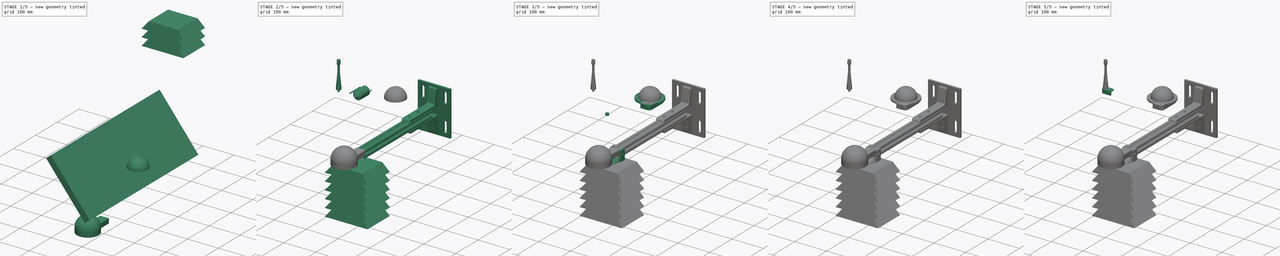
[diagram: build sequence overview — one tinted view per stage of 5, left to right]
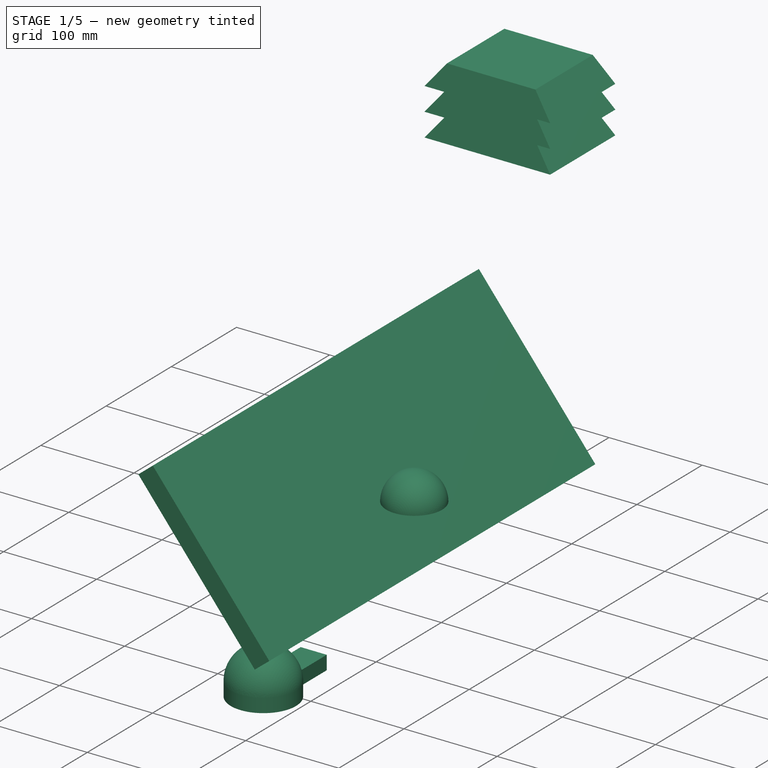
[diagram: stage 1 of 5 — iso view after this stage's code; geometry added in this stage tinted green]
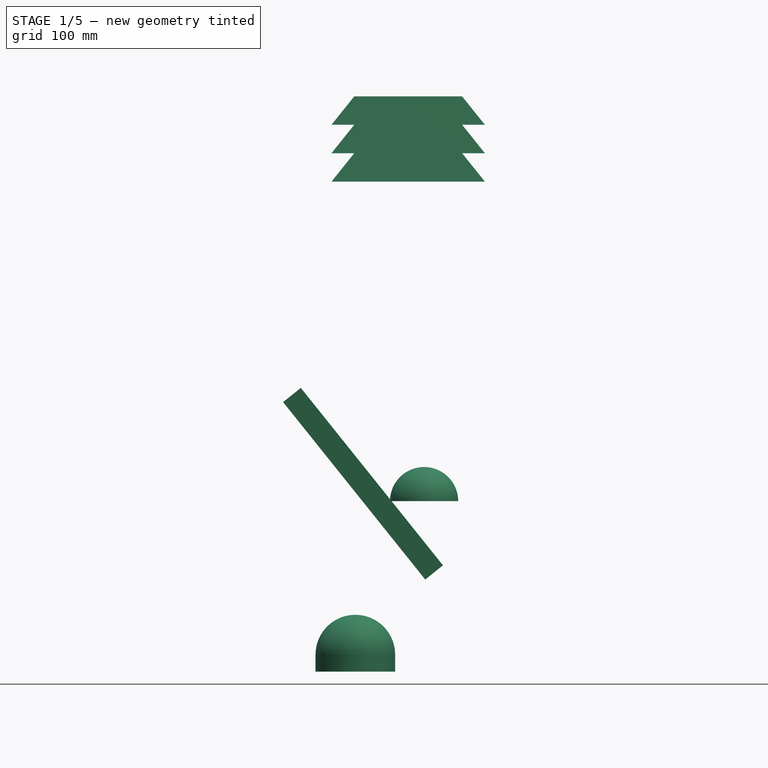
[diagram: stage 1 of 5 — front view after this stage's code; geometry added in this stage tinted green]
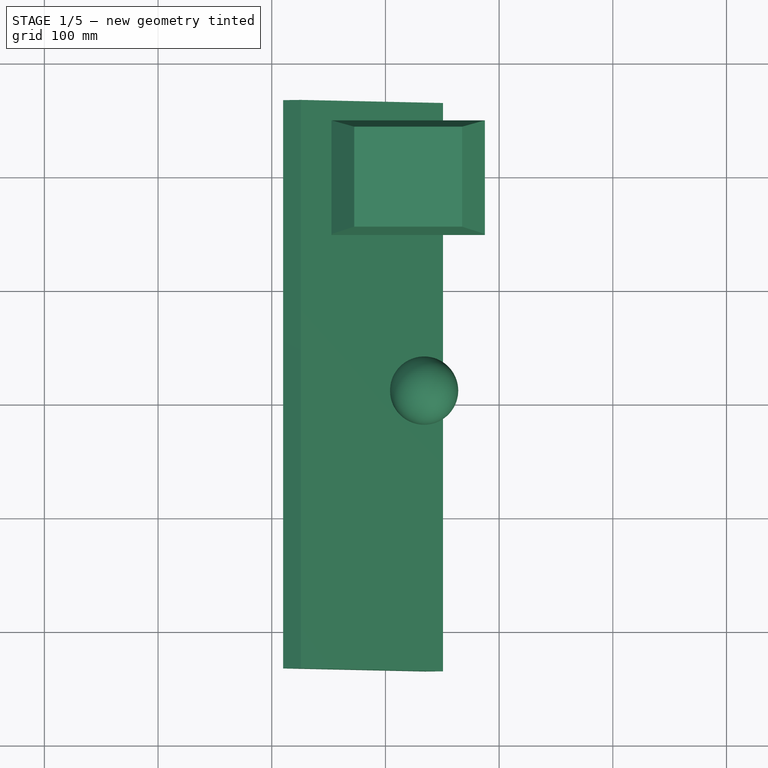
[diagram: stage 1 of 5 — top view after this stage's code; geometry added in this stage tinted green]
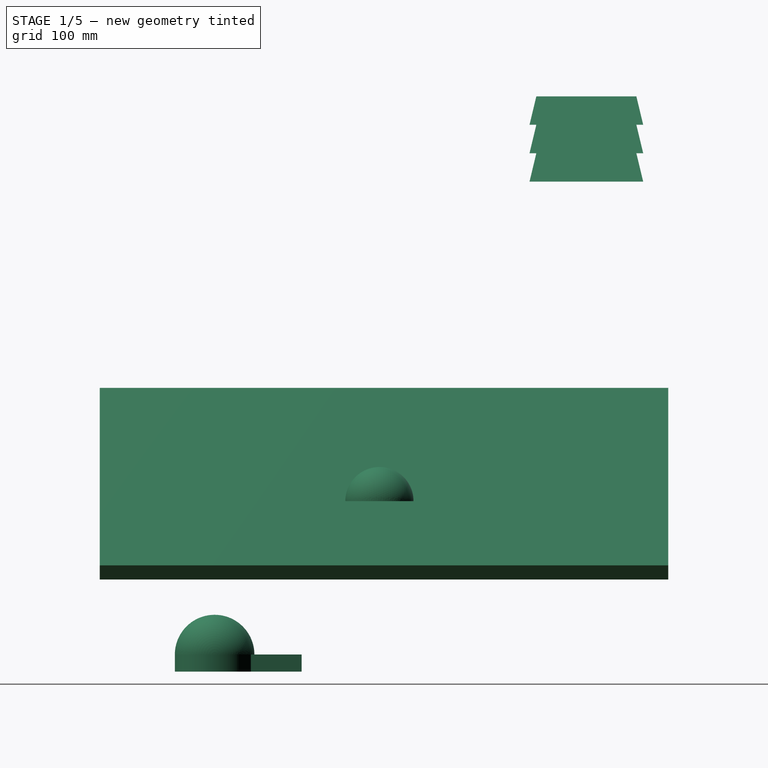
[diagram: stage 1 of 5 — right view after this stage's code; geometry added in this stage tinted green]
FCSTD DOCUMENT  (FreeCAD 0.20R29410 (Git))
Label: OuterVeiw_2023_04_28
License: All rights reserved
LicenseURL: http://en.wikipedia.org/wiki/All_rights_reserved
objects: Part::Box×35, Part::Cylinder×34, Part::Cut×25, Part::MultiFuse×24, Part::Fillet×23, Part::MultiCommon×10, Part::Feature×8, Part::Sphere×3, Sketcher::SketchObject×2, PartDesign::Pad×2, PartDesign::Body×2, PartDesign::AdditiveBox×1, Part::Cone×1, Part::Compound×1
note: 174 computed .brp shape members not serialized (recipe doc carries the construction recipe); baked Part::Feature solids carry a one-line shape summary decoded from their .brp

FEATURE [Part::Box] Box008  label="Cube005"
  AttacherType = Attacher::AttachEngine3D
  Height = 200
  Length = 200
  Placement = pos=(-22,-226,0) rot=(-1,0,0;0.235619rad)
  Width = 500
FEATURE [Part::Box] Box009  label="Acu1"
  AttacherType = Attacher::AttachEngine3D
  Height = 25
  Length = 135
  Placement = pos=(0,-226,0) rot=(0,0,1;0rad)
  Width = 100
FEATURE [Part::Box] Box010  label="Cube026"
  AttacherType = Attacher::AttachEngine3D
  Height = 200
  Length = 20
  Placement = pos=(135,-236,0) rot=(0,-1,0;0.675442rad)
  Width = 500
FEATURE [Part::Box] Box011  label="Cube027"
  AttacherType = Attacher::AttachEngine3D
  Height = 500
  Length = 500
  Placement = pos=(0,-236,0) rot=(0,1,0;0.675442rad)
  Width = 500
FEATURE [Part::Box] Box012  label="Cube028"
  AttacherType = Attacher::AttachEngine3D
  Height = 88
  Length = 200
  Placement = pos=(-33,-126,0) rot=(1,0,0;0.235619rad)
  Width = 55
FEATURE [Part::Box] Box030  label="Cube017"
  AttacherType = Attacher::AttachEngine3D
  Height = 200
  Length = 20
  Placement = pos=(135,-236,0) rot=(0,-1,0;0.675442rad)
  Width = 500
FEATURE [Part::Box] Box031  label="Acu004"
  AttacherType = Attacher::AttachEngine3D
  Height = 25
  Length = 135
  Placement = pos=(0,-226,0) rot=(0,0,1;0rad)
  Width = 100
FEATURE [Part::Box] Box032  label="Cube018"
  AttacherType = Attacher::AttachEngine3D
  Height = 200
  Length = 200
  Placement = pos=(-22,-226,0) rot=(-1,0,0;0.235619rad)
  Width = 500
FEATURE [Part::Box] Box033  label="Cube019"
  AttacherType = Attacher::AttachEngine3D
  Height = 88
  Length = 200
  Placement = pos=(-33,-126,0) rot=(1,0,0;0.235619rad)
  Width = 55
FEATURE [Part::Box] Box034  label="Cube020"
  AttacherType = Attacher::AttachEngine3D
  Height = 500
  Length = 500
  Placement = pos=(0,-236,0) rot=(0,1,0;0.675442rad)
  Width = 500
FEATURE [Part::Box] Box035  label="Cube021"
  AttacherType = Attacher::AttachEngine3D
  Height = 200
  Length = 20
  Placement = pos=(135,-236,0) rot=(0,-1,0;0.675442rad)
  Width = 500
FEATURE [Part::Box] Box036  label="Acu005"
  AttacherType = Attacher::AttachEngine3D
  Height = 25
  Length = 135
  Placement = pos=(0,-226,0) rot=(0,0,1;0rad)
  Width = 100
FEATURE [Part::Box] Box037  label="Cube022"
  AttacherType = Attacher::AttachEngine3D
  Height = 200
  Length = 200
  Placement = pos=(-22,-226,0) rot=(-1,0,0;0.235619rad)
  Width = 500
FEATURE [Part::Box] Box038  label="Cube023"
  AttacherType = Attacher::AttachEngine3D
  Height = 88
  Length = 200
  Placement = pos=(-33,-126,0) rot=(1,0,0;0.235619rad)
  Width = 55
FEATURE [Part::Box] Box039  label="Cube024"
  AttacherType = Attacher::AttachEngine3D
  Height = 500
  Length = 500
  Placement = pos=(0,-236,0) rot=(0,1,0;0.675442rad)
  Width = 500
FEATURE [Part::Box] Box040  label="Cube025"
  AttacherType = Attacher::AttachEngine3D
  Height = 200
  Length = 20
  Placement = pos=(135,-236,0) rot=(0,-1,0;0.675442rad)
  Width = 500
FEATURE [Part::Cut] Cut016
  Base = -> Box009
  Tool = -> Box010
FEATURE [Part::MultiCommon] Common
  Shapes = -> [Box011,Cut016]
FEATURE [Part::MultiCommon] Common001
  Shapes = -> [Common,Box008]
FEATURE [Part::Cut] Cut021
  Base = -> Box031
  Tool = -> Box035
FEATURE [Part::MultiCommon] Common007
  Shapes = -> [Box034,Cut021]
FEATURE [Part::MultiCommon] Common006
  Shapes = -> [Common007,Box032]
FEATURE [Part::Cut] Cut022  label="Enclosure Common003"
  Base = -> Common006
  Placement = pos=(52.5,368,400) rot=(0,0,1;0rad)
  Tool = -> Box033
FEATURE [Part::Cut] Cut023
  Base = -> Box036
  Tool = -> Box040
FEATURE [Part::MultiCommon] Common009
  Shapes = -> [Box039,Cut023]
FEATURE [Part::MultiCommon] Common008
  Shapes = -> [Common009,Box037]
FEATURE [Part::Cut] Cut024  label="Enclosure Common004"
  Base = -> Common008
  Placement = pos=(52.5,368,375) rot=(0,0,1;0rad)
  Tool = -> Box038
FEATURE [Part::Cut] Cut025  label="Enclosure Common005"
  Base = -> Common001
  Placement = pos=(52.5,368,350) rot=(0,0,1;0rad)
  Tool = -> Box012
FEATURE [Part::Sphere] Sphere  label="lightDome"
  Angle1 = -90
  Angle2 = 90
  Angle3 = 180
  AttacherType = Attacher::AttachEngine3D
  Placement = pos=(134,10,69) rot=(1,0,0;1.5708rad)
  Radius = 30
FEATURE [Part::Sphere] Sphere002  label="rainDome"
  Angle1 = -90
  Angle2 = 90
  Angle3 = 180
  AttacherType = Attacher::AttachEngine3D
  Placement = pos=(73.5,-135,-66) rot=(0.57735,0.57735,0.57735;2.0944rad)
  Radius = 35
FEATURE [Part::Cylinder] Cylinder055
  Angle = 360
  AttacherType = Attacher::AttachEngine3D
  FirstAngle = 0
  Height = 15
  Placement = pos=(73.5,-135,-81) rot=(0,0,1;0rad)
  Radius = 35
  SecondAngle = 0
FEATURE [Part::Box] Box041  label="Cube029"
  AttacherType = Attacher::AttachEngine3D
  Height = 15
  Length = 28
  Placement = pos=(60,-103.5,-81) rot=(0,0,1;0rad)
  Width = 45
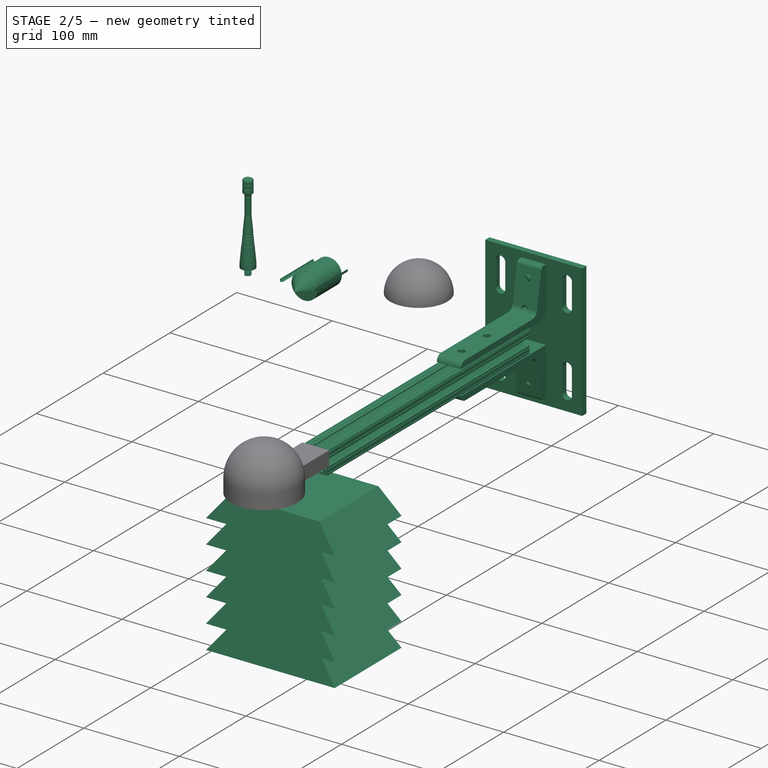
[diagram: stage 2 of 5 — iso view after this stage's code; geometry added in this stage tinted green]
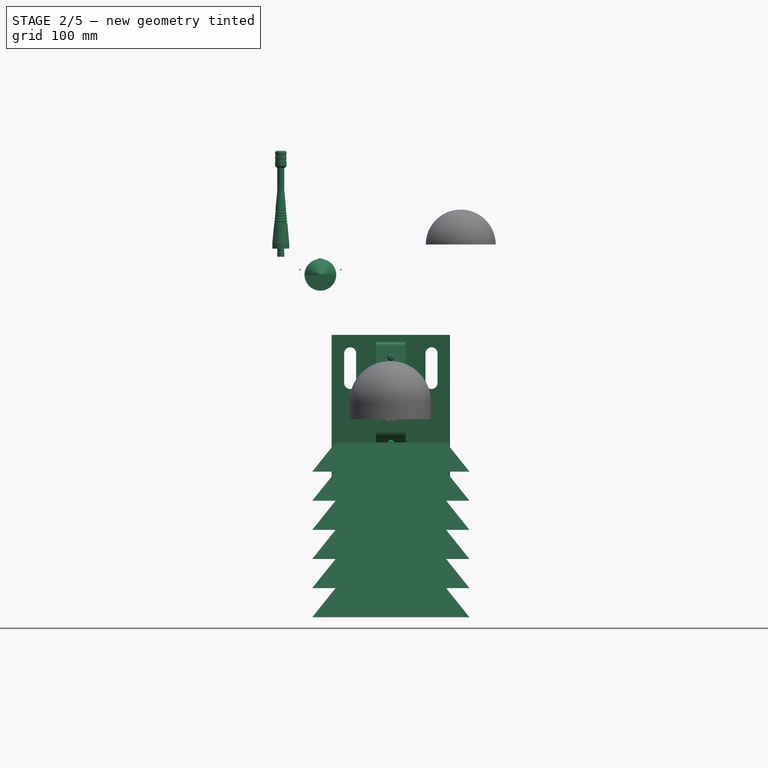
[diagram: stage 2 of 5 — front view after this stage's code; geometry added in this stage tinted green]
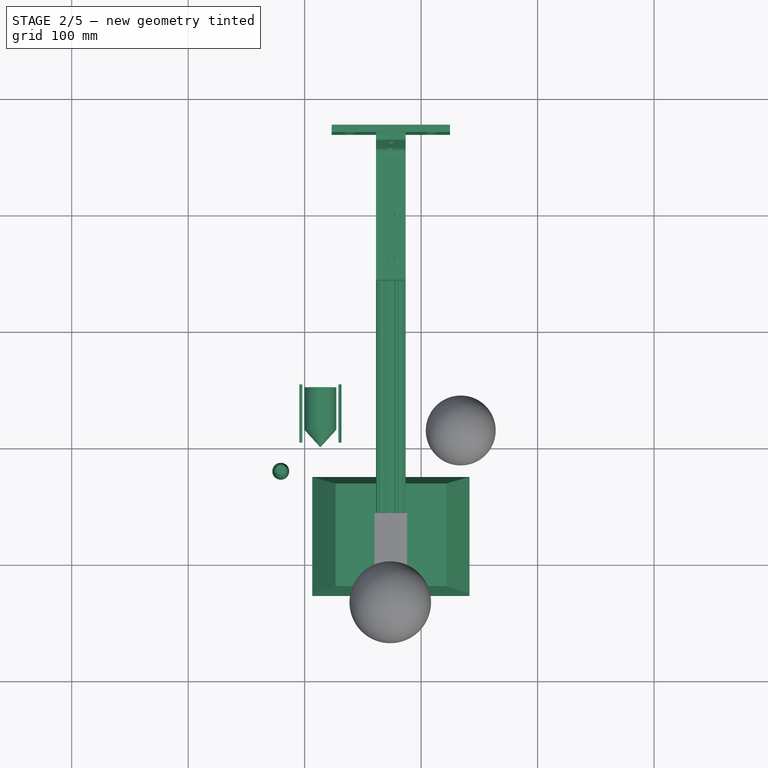
[diagram: stage 2 of 5 — top view after this stage's code; geometry added in this stage tinted green]
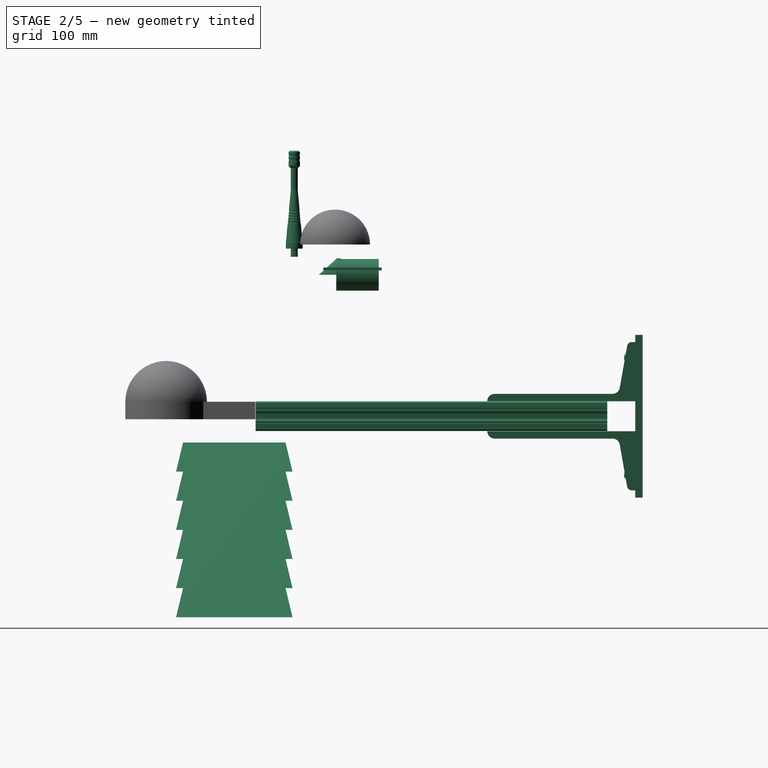
[diagram: stage 2 of 5 — right view after this stage's code; geometry added in this stage tinted green]
FEATURE [Part::Box] Box019  label="Cube003"
  AttacherType = Attacher::AttachEngine3D
  Height = 2.5
  Length = 2.5
  Placement = pos=(-4.5,0,46.75) rot=(0,0,1;0rad)
  Width = 50
FEATURE [Part::Box] Box020  label="Cube004"
  AttacherType = Attacher::AttachEngine3D
  Height = 2.5
  Length = 2.5
  Placement = pos=(-4.5,0,46.75) rot=(0,0,1;0rad)
  Width = 50
FEATURE [Part::Cone] Cone
  Angle = 180
  AttacherType = Attacher::AttachEngine3D
  Height = 15
  Placement = pos=(13.5,11,43) rot=(1,0,0;1.5708rad)
  Radius1 = 13.6
  Radius2 = 0
FEATURE [Part::Cylinder] Cylinder051
  Angle = 360
  AttacherType = Attacher::AttachEngine3D
  FirstAngle = 0
  Height = 36.5
  Placement = pos=(13.5,47.5,43) rot=(0,0.707107,-0.707107;3.14159rad)
  Radius = 13.6
  SecondAngle = 0
FEATURE [Part::Cylinder] Cylinder052
  Angle = 360
  AttacherType = Attacher::AttachEngine3D
  FirstAngle = 0
  Height = 12
  Placement = pos=(13.5,13,45) rot=(0,0,1;1.5708rad)
  Radius = 2
  SecondAngle = 0
FEATURE [Part::Cylinder] Cylinder053
  Angle = 90
  AttacherType = Attacher::AttachEngine3D
  FirstAngle = 0
  Height = 50
  Placement = pos=(-2,50,49.25) rot=(0,0.707107,-0.707107;3.14159rad)
  Radius = 2.5
  SecondAngle = 0
FEATURE [Part::Cut] Cut013
  Base = -> Box019
  Tool = -> Cylinder053
FEATURE [Part::Cylinder] Cylinder054
  Angle = 90
  AttacherType = Attacher::AttachEngine3D
  FirstAngle = 0
  Height = 50
  Placement = pos=(-2,50,49.25) rot=(0,0.707107,-0.707107;3.14159rad)
  Radius = 2.5
  SecondAngle = 0
FEATURE [Part::Cut] Cut014
  Base = -> Box020
  Placement = pos=(78.25,0,51.25) rot=(0,-1,0;1.5708rad)
  Tool = -> Cylinder054
FEATURE [Part::MultiFuse] Fusion031  label="beak"
  Shapes = -> [Cylinder051,Cone]
FEATURE [Part::MultiFuse] Fusion003  label="cuts001"
  Shapes = -> [Cut014,Cut013,Cylinder052]
FEATURE [Part::Feature] Feature001  label="EX-64-003"
  Placement = pos=(73,92,0.5) rot=(0,0,1;3.14159rad)
  shape: bbox 178.8 x 63.35 x 129.6 mm, 1628 faces, 33 solids (baked)
FEATURE [Part::Feature] Part__Feature022  label="3136N138_T-Slotted Framing"
  Placement = pos=(0,200.3,0) rot=(0,0,1;0rad)
  shape: bbox 101.6 x 133.4 x 139.7 mm, 136 faces (baked)
FEATURE [Part::Feature] Part__Feature023  label="47065T801_T-Slotted Framing"
  Placement = pos=(0,300.5,0) rot=(-1,0,0;1.5708rad)
  shape: bbox 25.4 x 152.4 x 25.4 mm, 108 faces (baked)
FEATURE [Part::Feature] Part__Feature024  label="47065T801_T-Slotted Framing001"
  Placement = pos=(0,450,0) rot=(-1,0,0;1.5708rad)
  shape: bbox 25.4 x 152.4 x 25.4 mm, 108 faces (baked)
FEATURE [Part::MultiFuse] Fusion032  label="framingSupport"
  Placement = pos=(74,468,-78.41) rot=(0,0,1;3.14159rad)
  Shapes = -> [Part__Feature024,Part__Feature022,Part__Feature023]
FEATURE [Part::Feature] Part__Feature026  label="ANT-868-PW-QW-UFL-BODY001"
  shape: bbox 15.69 x 84 x 15.69 mm, 56 faces (baked)
FEATURE [Part::Feature] Part__Feature027  label="Screw001"
  Placement = pos=(0,-7.05,0) rot=(0,0,1;0rad)
  shape: bbox 7.002 x 7.052 x 7.002 mm, 20 faces (baked)
FEATURE [Part::Feature] Part__Feature028  label="Ring001"
  shape: bbox 9.2 x 6 x 9.2 mm, 8 faces, 2 solids (baked)
FEATURE [Part::Compound] Compound002  label="loraAntenna"
  Links = -> [Part__Feature028,Part__Feature026,Part__Feature027]
  Placement = pos=(-20.5,-25,65.5) rot=(0.57735,-0.57735,-0.57735;2.0944rad)
FEATURE [Part::Box] Box021  label="Acu002"
  AttacherType = Attacher::AttachEngine3D
  Height = 25
  Length = 135
  Placement = pos=(0,-226,0) rot=(0,0,1;0rad)
  Width = 100
FEATURE [Part::Box] Box022  label="Cube010"
  AttacherType = Attacher::AttachEngine3D
  Height = 200
  Length = 200
  Placement = pos=(-22,-226,0) rot=(-1,0,0;0.235619rad)
  Width = 500
FEATURE [Part::Box] Box023  label="Cube011"
  AttacherType = Attacher::AttachEngine3D
  Height = 500
  Length = 500
  Placement = pos=(0,-236,0) rot=(0,1,0;0.675442rad)
  Width = 500
FEATURE [Part::Box] Box024  label="Cube012"
  AttacherType = Attacher::AttachEngine3D
  Height = 200
  Length = 20
  Placement = pos=(135,-236,0) rot=(0,-1,0;0.675442rad)
  Width = 500
FEATURE [Part::Box] Box025  label="Cube013"
  AttacherType = Attacher::AttachEngine3D
  Height = 88
  Length = 200
  Placement = pos=(-33,-126,0) rot=(1,0,0;0.235619rad)
  Width = 55
FEATURE [Part::Box] Box026  label="Acu003"
  AttacherType = Attacher::AttachEngine3D
  Height = 25
  Length = 135
  Placement = pos=(0,-226,0) rot=(0,0,1;0rad)
  Width = 100
FEATURE [Part::Box] Box027  label="Cube014"
  AttacherType = Attacher::AttachEngine3D
  Height = 200
  Length = 200
  Placement = pos=(-22,-226,0) rot=(-1,0,0;0.235619rad)
  Width = 500
FEATURE [Part::Box] Box028  label="Cube015"
  AttacherType = Attacher::AttachEngine3D
  Height = 88
  Length = 200
  Placement = pos=(-33,-126,0) rot=(1,0,0;0.235619rad)
  Width = 55
FEATURE [Part::Box] Box029  label="Cube016"
  AttacherType = Attacher::AttachEngine3D
  Height = 500
  Length = 500
  Placement = pos=(0,-236,0) rot=(0,1,0;0.675442rad)
  Width = 500
FEATURE [Part::Cut] Cut017  label="Enclosure Common000"
  Base = -> Common001
  Placement = pos=(52.5,368,475) rot=(0,0,1;0rad)
  Tool = -> Box012
FEATURE [Part::Cut] Cut018
  Base = -> Box021
  Tool = -> Box024
FEATURE [Part::MultiCommon] Common002
  Shapes = -> [Box023,Cut018]
FEATURE [Part::MultiCommon] Common003
  Shapes = -> [Common002,Box022]
FEATURE [Part::Cut] Cut006  label="Enclosure Common001"
  Base = -> Common003
  Placement = pos=(52.5,368,450) rot=(0,0,1;0rad)
  Tool = -> Box025
FEATURE [Part::Cut] Cut019
  Base = -> Box026
  Tool = -> Box030
FEATURE [Part::MultiCommon] Common005
  Shapes = -> [Box029,Cut019]
FEATURE [Part::MultiCommon] Common004
  Shapes = -> [Common005,Box027]
FEATURE [Part::Cut] Cut020  label="Enclosure Common002"
  Base = -> Common004
  Placement = pos=(52.5,368,425) rot=(0,0,1;0rad)
  Tool = -> Box028
FEATURE [Part::MultiFuse] Fusion033  label="solarRadiationSheild"
  Placement = pos=(194,115.5,-601) rot=(0,0,1;3.14159rad)
  Shapes = -> [Cut006,Cut020,Cut022,Cut024,Cut025,Cut017]
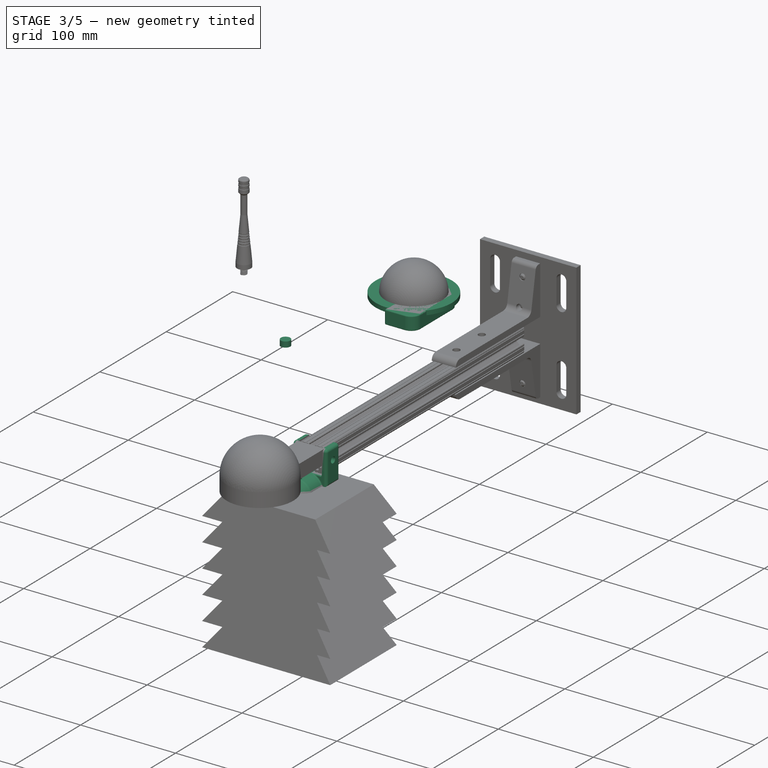
[diagram: stage 3 of 5 — iso view after this stage's code; geometry added in this stage tinted green]
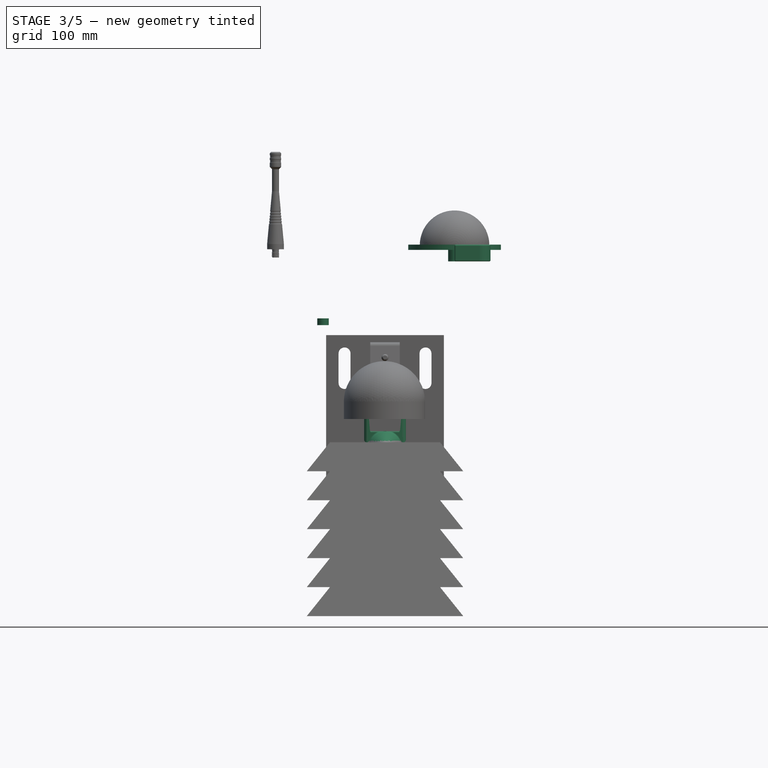
[diagram: stage 3 of 5 — front view after this stage's code; geometry added in this stage tinted green]
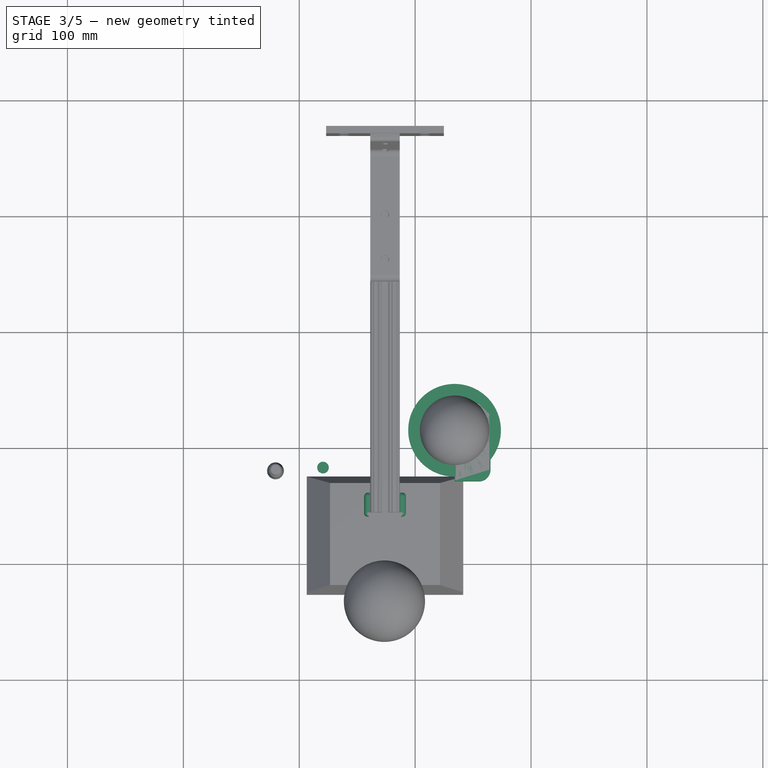
[diagram: stage 3 of 5 — top view after this stage's code; geometry added in this stage tinted green]
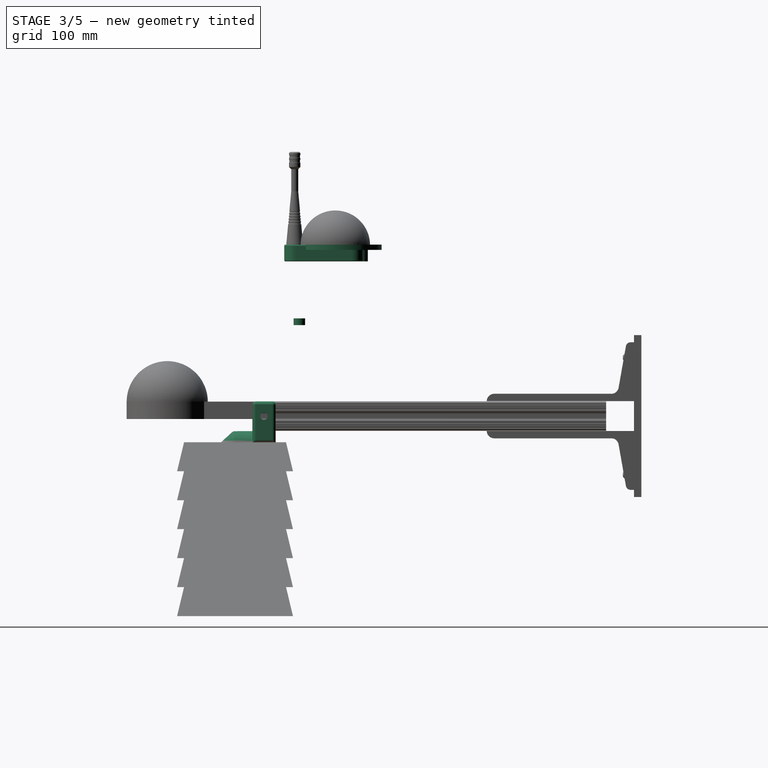
[diagram: stage 3 of 5 — right view after this stage's code; geometry added in this stage tinted green]
FEATURE [Sketcher::SketchObject] Sketch001
  FullyConstrained = false
  MapMode = 5
  Support = -> [XY_Plane001]
  sketch-geometry (49):
    g0: GeomPoint X=44.5093 Y=-30.668 Z=0
    g1: GeomPoint X=85.7303 Y=-30.7001 Z=0
    g2: GeomPoint X=87.2659 Y=-30.5404 Z=0
    g3: GeomPoint X=91.8923 Y=-26.8165 Z=0
    g4: GeomPoint X=92.4288 Y=-25.33 Z=0
    g5: GeomPoint X=93.1446 Y=-20.5457 Z=0
    g6: GeomPoint X=93.6599 Y=-16.0974 Z=0
    g7: GeomPoint X=93.9312 Y=-11.8931 Z=0
    g8: GeomPoint X=93.9312 Y=6.25646 Z=0
    g9: GeomPoint X=93.9401 Y=8.91625 Z=0
    g10: GeomPoint X=93.8644 Y=12.7559 Z=0
    g11: GeomPoint X=93.2714 Y=19.6725 Z=0
    g12: GeomPoint X=92.3963 Y=25.2341 Z=0
    g13: GeomPoint X=91.8282 Y=26.7962 Z=0
    g14: GeomPoint X=91.1285 Y=27.9983 Z=0
    g15: GeomPoint X=90.1597 Y=29.0389 Z=0
    g16: GeomPoint X=88.8662 Y=29.8509 Z=0
    g17: GeomPoint X=87.4629 Y=30.4081 Z=0
    g18: GeomPoint X=85.8119 Y=30.6351 Z=0
    g19: GeomPoint X=79.1753 Y=30.6351 Z=0
    g20: GeomPoint X=78.6575 Y=30.0897 Z=0
    g21: GeomPoint X=44.5006 Y=30.0897 Z=0
    g22: LineSegment StartX=44.5093 StartY=-30.668 StartZ=0 EndX=85.7303 EndY=-30.7001 EndZ=0
    g23: LineSegment StartX=85.7303 StartY=-30.7001 StartZ=0 EndX=87.2659 EndY=-30.5404 EndZ=0
    g24: LineSegment StartX=91.0945 StartY=-28.018 StartZ=0 EndX=91.8923 EndY=-26.8165 EndZ=0
    g25: LineSegment StartX=91.8923 StartY=-26.8165 StartZ=0 EndX=92.4288 EndY=-25.33 EndZ=0
    g26: LineSegment StartX=92.4288 StartY=-25.33 StartZ=0 EndX=93.1446 EndY=-20.5457 EndZ=0
    g27: LineSegment StartX=93.1446 StartY=-20.5457 StartZ=0 EndX=93.6599 EndY=-16.0974 EndZ=0
    g28: LineSegment StartX=93.6599 StartY=-16.0974 StartZ=0 EndX=93.9312 EndY=-11.8931 EndZ=0
    g29: LineSegment StartX=93.9312 StartY=-11.8931 StartZ=0 EndX=93.9312 EndY=6.25646 EndZ=0
    g30: LineSegment StartX=93.9312 StartY=6.25646 StartZ=0 EndX=93.9401 EndY=8.91625 EndZ=0
    g31: GeomPoint X=93.5743 Y=16.1437 Z=0
    g32: LineSegment StartX=93.9401 StartY=8.91625 StartZ=0 EndX=93.8644 EndY=12.7559 EndZ=0
    g33: LineSegment StartX=93.8644 StartY=12.7559 StartZ=0 EndX=93.5743 EndY=16.1437 EndZ=0
    g34: LineSegment StartX=93.5743 StartY=16.1437 StartZ=0 EndX=93.2714 EndY=19.6725 EndZ=0
    g35: LineSegment StartX=93.2714 StartY=19.6725 StartZ=0 EndX=92.3963 EndY=25.2341 EndZ=0
    g36: LineSegment StartX=92.3963 StartY=25.2341 StartZ=0 EndX=91.8282 EndY=26.7962 EndZ=0
    g37: LineSegment StartX=91.8282 StartY=26.7962 StartZ=0 EndX=91.1285 EndY=27.9983 EndZ=0
    g38: LineSegment StartX=91.1285 StartY=27.9983 StartZ=0 EndX=90.1597 EndY=29.0389 EndZ=0
    g39: LineSegment StartX=90.1597 StartY=29.0389 StartZ=0 EndX=88.8662 EndY=29.8509 EndZ=0
    g40: LineSegment StartX=88.8662 StartY=29.8509 StartZ=0 EndX=87.4629 EndY=30.4081 EndZ=0
    g41: LineSegment StartX=87.4629 StartY=30.4081 StartZ=0 EndX=85.8119 EndY=30.6351 EndZ=0
    g42: LineSegment StartX=85.8119 StartY=30.6351 StartZ=0 EndX=79.1753 EndY=30.6351 EndZ=0
    g43: LineSegment StartX=79.1753 StartY=30.6351 StartZ=0 EndX=78.6575 EndY=30.0897 EndZ=0
    g44: LineSegment StartX=78.6575 StartY=30.0897 StartZ=0 EndX=44.5006 EndY=30.0897 EndZ=0
    g45: LineSegment StartX=44.5093 StartY=-30.668 StartZ=0 EndX=44.5006 EndY=30.0897 EndZ=0
    g46: LineSegment StartX=87.2659 StartY=-30.5404 StartZ=0 EndX=88.7273 EndY=-30.0287 EndZ=0
    g47: LineSegment StartX=88.7273 StartY=-30.0287 StartZ=0 EndX=90.018 EndY=-29.1936 EndZ=0
    g48: LineSegment StartX=90.018 StartY=-29.1936 StartZ=0 EndX=91.0945 EndY=-28.018 EndZ=0
  constraints (42):
    c: Coincident(g22,g0)
    c: Coincident(g22,g1)
    c: Coincident(g23,g22)
    c: Coincident(g23,g2)
    c: Coincident(g24,g3)
    c: Coincident(g25,g24)
    c: Coincident(g25,g4)
    c: Coincident(g26,g25)
    c: Coincident(g26,g5)
    c: Coincident(g27,g26)
    c: Coincident(g27,g6)
    c: Coincident(g28,g27)
    c: Coincident(g28,g7)
    c: Coincident(g29,g28)
    c: Coincident(g29,g8)
    c: Coincident(g30,g29)
    c: Coincident(g30,g9)
    c: Coincident(g32,g30)
    c: Coincident(g32,g10)
    c: Coincident(g33,g32)
    c: Coincident(g33,g31)
    c: Coincident(g34,g11)
    c: Coincident(g35,g34)
    c: Coincident(g35,g12)
    c: Coincident(g36,g13)
    c: Coincident(g37,g14)
    c: Coincident(g38,g37)
    c: Coincident(g38,g15)
    c: Coincident(g39,g16)
    c: Coincident(g40,g17)
    c: Coincident(g41,g18)
    c: Coincident(g42,g41)
    c: Coincident(g42,g19)
    c: Coincident(g43,g42)
    c: Coincident(g43,g20)
    c: Coincident(g44,g43)
    c: Coincident(g44,g21)
    c: Coincident(g45,g22)
    c: Coincident(g46,g23)
    c: Coincident(g47,g46)
    c: Coincident(g48,g47)
    c: Coincident(g48,g24)
FEATURE [PartDesign::Pad] Pad001
  Direction = (0,0,1)
  Length = 10
  Length2 = 10
  Profile = -> Sketch001
  ReferenceAxis = -> Sketch001 [N_Axis]
  Type = 0
  expr: Length = 10
FEATURE [Part::Cylinder] Cylinder025
  Angle = 360
  AttacherType = Attacher::AttachEngine3D
  FirstAngle = 0
  Height = 5.82
  Placement = pos=(20.5,-21,0) rot=(0,0,1;0rad)
  Radius = 5
  SecondAngle = 0
FEATURE [Part::Cylinder] Cylinder026  label="base"
  Angle = 360
  AttacherType = Attacher::AttachEngine3D
  FirstAngle = 0
  Height = 4.5
  Placement = pos=(136,0,65) rot=(0,0,1;0rad)
  Radius = 40
  SecondAngle = 0
FEATURE [Part::Cylinder] Cylinder027  label="baseCut"
  Angle = 360
  AttacherType = Attacher::AttachEngine3D
  FirstAngle = 0
  Height = 7
  Placement = pos=(5,0,74) rot=(0,0,1;0rad)
  Radius = 24
  SecondAngle = 0
FEATURE [Part::Sphere] Sphere001  label="SphereBase"
  Angle1 = 0
  Angle2 = 12
  Angle3 = 360
  AttacherType = Attacher::AttachEngine3D
  Placement = pos=(5,0,74) rot=(0,0,1;0rad)
  Radius = 28.3
FEATURE [Part::Cut] Cut003
  Base = -> Sphere001
  Placement = pos=(131,0,-5) rot=(0,0,1;0rad)
  Tool = -> Cylinder027
FEATURE [Part::Box] Box004  label="Cube002"
  AttacherType = Attacher::AttachEngine3D
  Height = 14.5
  Length = 31
  Placement = pos=(134,-34,55) rot=(0,0,1;0rad)
  Width = 68
FEATURE [Part::Fillet] Fillet005
  Base = -> Box004
  Edges = 1 edges r=10: [Edge5]
FEATURE [Part::Fillet] Fillet006
  Base = -> Fillet005
  Edges = 1 edges r=10: [Edge4]
FEATURE [Part::MultiFuse] Fusion017  label="Base"
  Placement = pos=(-2,10,0) rot=(0,0,1;0rad)
  Shapes = -> [Cut003,Cylinder026]
FEATURE [Part::Cylinder] Cylinder046
  Angle = 360
  AttacherType = Attacher::AttachEngine3D
  FirstAngle = 0
  Height = 14.5
  Placement = pos=(134,32.6,55) rot=(0,0,1;0rad)
  Radius = 5.5
  SecondAngle = 0
FEATURE [Part::Cylinder] Cylinder048  label="m3_5Add001"
  Angle = 360
  AttacherType = Attacher::AttachEngine3D
  FirstAngle = 0
  Height = 3
  Placement = pos=(150.5,22,62.5) rot=(0,0,1;0rad)
  Radius = 3
  SecondAngle = 0
FEATURE [Part::Cut] Cut004  label="base002"
  Base = -> Fillet006
  Tool = -> Body001
FEATURE [Part::Fillet] Fillet007
  Base = -> Cut004
  Edges = 1 edges r=1: [Edge41]
FEATURE [Part::Fillet] Fillet008
  Base = -> Fillet007
  Edges = 1 edges r=1: [Edge6]
FEATURE [Part::Fillet] Fillet009
  Base = -> Fillet008
  Edges = 1 edges r=1: [Edge17]
FEATURE [Part::Cylinder] Cylinder050  label="m3Cut004"
  Angle = 360
  AttacherType = Attacher::AttachEngine3D
  FirstAngle = 0
  Height = 2
  Placement = pos=(150.5,-22,65) rot=(0,0,1;0rad)
  Radius = 3.2
  SecondAngle = 0
FEATURE [Part::Feature] Feature  label="EX-64-002"
  Placement = pos=(73,0,0.5) rot=(0,0,1;3.14159rad)
  shape: bbox 178.8 x 63.35 x 129.6 mm, 1628 faces, 33 solids (baked)
FEATURE [Part::Box] Box015  label="TSlotMount001"
  AttacherType = Attacher::AttachEngine3D
  Height = 35.5
  Length = 36
  Placement = pos=(-4.5,27.5,46.75) rot=(0,0,1;0rad)
  Width = 20
FEATURE [Part::Box] Box016  label="Shell_Holder002"
  AttacherType = Attacher::AttachEngine3D
  Height = 20
  Length = 29
  Placement = pos=(-1,-20.5,26.75) rot=(0,0,1;0rad)
  Width = 75
FEATURE [Part::Box] Box018  label="TSlotFrameCut001"
  AttacherType = Attacher::AttachEngine3D
  Height = 28.5
  Length = 26
  Placement = pos=(0.5,0,56.5) rot=(0,0,1;0rad)
  Width = 254
FEATURE [Part::Cut] Cut011  label="TSlotMount002"
  Base = -> Box015
  Tool = -> Box018
FEATURE [Part::Cylinder] Cylinder009  label="m5Cut"
  Angle = 360
  AttacherType = Attacher::AttachEngine3D
  FirstAngle = 0
  Height = 100
  Placement = pos=(-57.4,37.5,69.5) rot=(0,1,0;1.5708rad)
  Radius = 3.25
  SecondAngle = 0
FEATURE [Part::Cut] Cut012
  Base = -> Cut011
  Tool = -> Cylinder009
FEATURE [Part::Cut] Cut010
  Base = -> Fusion031
  Tool = -> Box016
FEATURE [Part::MultiFuse] Fusion002
  Shapes = -> [Cut010,Cut012]
FEATURE [Part::Fillet] Fillet018
  Base = -> Fusion002
  Edges = 6 edges r=1: [Edge26,Edge28,Edge36,Edge38,Edge44,Edge46]
FEATURE [Part::Fillet] Fillet019
  Base = -> Fillet018
  Edges = 2 edges r=3: [Edge4,Edge26]
FEATURE [Part::Fillet] Fillet020
  Base = -> Fillet019
  Edges = 2 edges r=3: [Edge48,Edge71]
FEATURE [Part::Fillet] Fillet021
  Base = -> Fillet020
  Edges = 1 edges r=3: [Edge57]
FEATURE [Part::Fillet] Fillet022
  Base = -> Fillet021
  Edges = 2 edges r=3: [Edge60,Edge73]
FEATURE [Part::Cut] Cut015  label="airModuleHolder"
  Base = -> Fillet022
  Placement = pos=(60.5,-89,-148) rot=(0,0,1;0rad)
  Tool = -> Fusion003
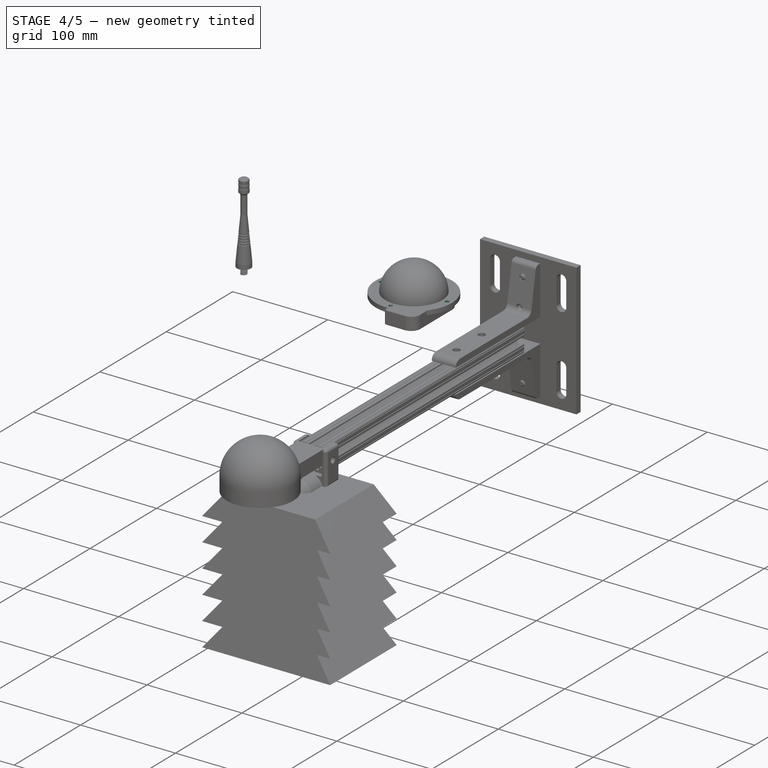
[diagram: stage 4 of 5 — iso view after this stage's code; geometry added in this stage tinted green]
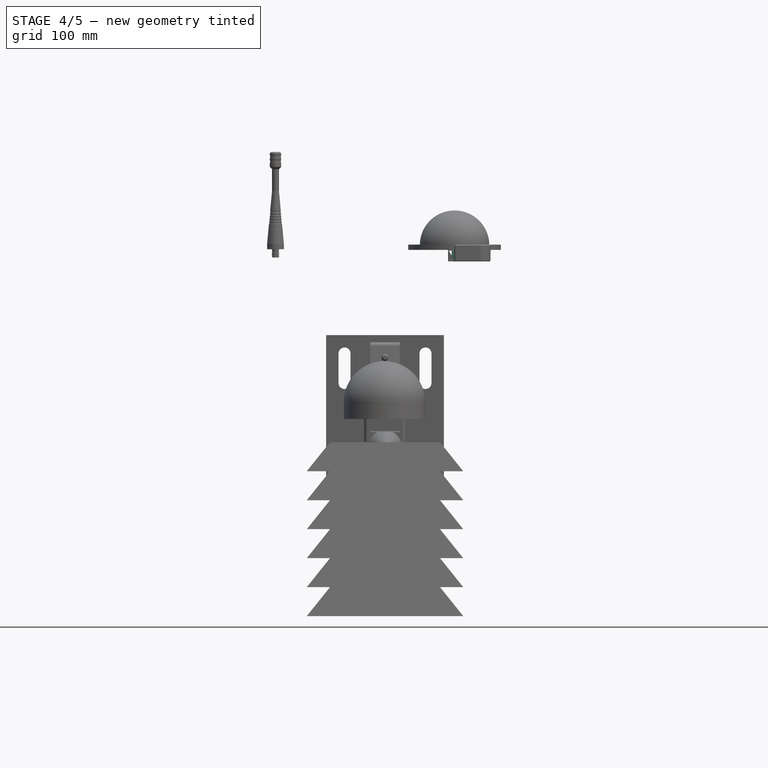
[diagram: stage 4 of 5 — front view after this stage's code; geometry added in this stage tinted green]
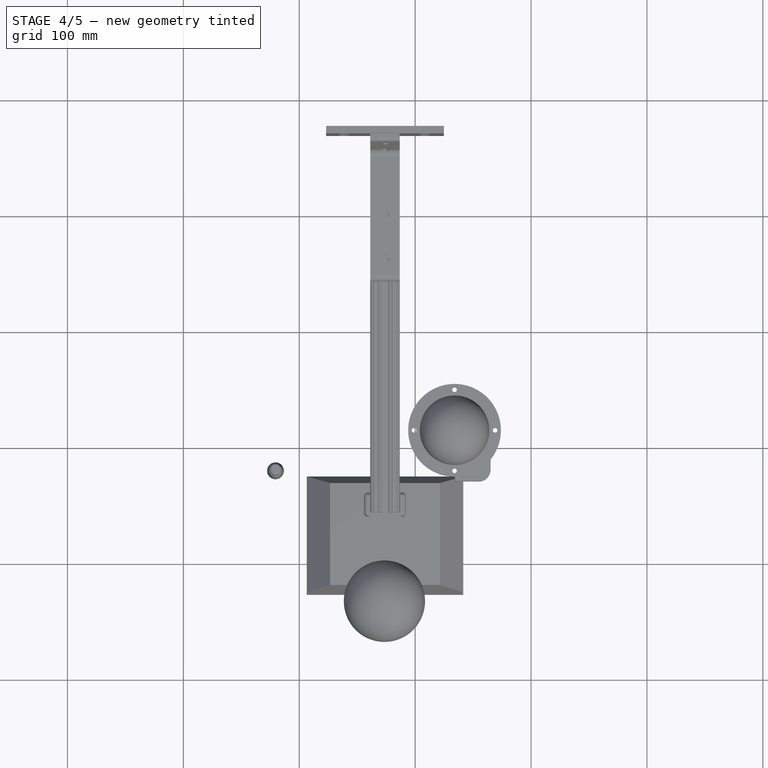
[diagram: stage 4 of 5 — top view after this stage's code; geometry added in this stage tinted green]
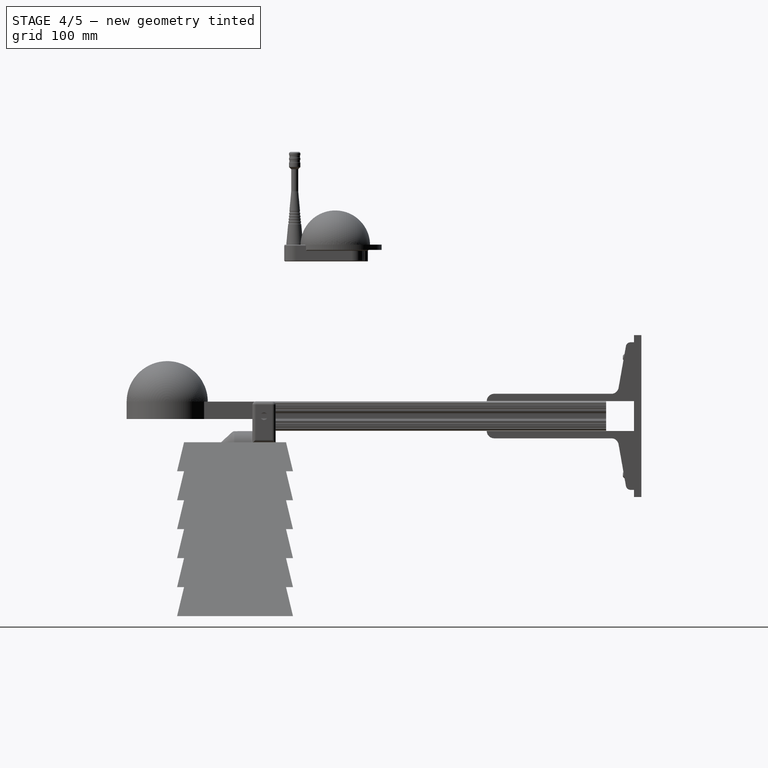
[diagram: stage 4 of 5 — right view after this stage's code; geometry added in this stage tinted green]
FEATURE [PartDesign::Body] Body001
  Group = -> [Sketch001,Pad001]
  Origin = -> Origin001
  Placement = pos=(68,0,55) rot=(0,0,1;0rad)
  Tip = -> Pad001
FEATURE [Part::Cylinder] Cylinder022
  Angle = 360
  AttacherType = Attacher::AttachEngine3D
  FirstAngle = 0
  Height = 5.82
  Placement = pos=(0,-21,0) rot=(0,0,1;0rad)
  Radius = 5
  SecondAngle = 0
FEATURE [Part::Cylinder] Cylinder023
  Angle = 360
  AttacherType = Attacher::AttachEngine3D
  FirstAngle = 0
  Height = 5.82
  Placement = pos=(20.5,-21,0) rot=(0,0,1;0rad)
  Radius = 5
  SecondAngle = 0
  expr: Radius = 5
FEATURE [Part::Cylinder] Cylinder024
  Angle = 360
  AttacherType = Attacher::AttachEngine3D
  FirstAngle = 0
  Height = 5.82
  Placement = pos=(0,-21,0) rot=(0,0,1;0rad)
  Radius = 5
  SecondAngle = 0
FEATURE [Part::Cylinder] Cylinder032  label="m2HeatSetInsets"
  Angle = 360
  AttacherType = Attacher::AttachEngine3D
  FirstAngle = 0
  Height = 10
  Placement = pos=(-30,0,65) rot=(0,0,1;0rad)
  Radius = 2
  SecondAngle = 0
  expr: Radius = 2
FEATURE [Part::Cylinder] Cylinder033  label="m2HeatSetInsets001"
  Angle = 360
  AttacherType = Attacher::AttachEngine3D
  FirstAngle = 0
  Height = 10
  Placement = pos=(40,0,65) rot=(0,0,1;0rad)
  Radius = 2
  SecondAngle = 0
FEATURE [Part::Cylinder] Cylinder034  label="m2HeatSetInsets002"
  Angle = 360
  AttacherType = Attacher::AttachEngine3D
  FirstAngle = 0
  Height = 10
  Placement = pos=(5,35,65) rot=(0,0,1;0rad)
  Radius = 2
  SecondAngle = 0
FEATURE [Part::Cylinder] Cylinder035  label="m2HeatSetInsets003"
  Angle = 360
  AttacherType = Attacher::AttachEngine3D
  FirstAngle = 0
  Height = 10
  Placement = pos=(5,-35,65) rot=(0,0,1;0rad)
  Radius = 2
  SecondAngle = 0
  expr: Radius = 2
FEATURE [Part::MultiFuse] Fusion010  label="m3HeatSetCuts"
  Placement = pos=(-5,39,70) rot=(0,0,1;0rad)
  Shapes = -> [Cylinder023,Cylinder022]
FEATURE [Part::MultiFuse] Fusion011  label="m3HeatSetCuts001"
  Placement = pos=(-5,3,70) rot=(0,0,1;0rad)
  Shapes = -> [Cylinder025,Cylinder024]
FEATURE [Part::MultiFuse] Fusion012  label="m3HeatSetCuts002"
  Placement = pos=(128.75,10,-1) rot=(0,0,1;0rad)
  Shapes = -> [Fusion011,Fusion010]
FEATURE [Part::MultiFuse] Fusion016
  Placement = pos=(129,10,0) rot=(0,0,1;0rad)
  Shapes = -> [Cylinder032,Cylinder033,Cylinder034,Cylinder035]
FEATURE [Part::Cylinder] Cylinder036
  Angle = 360
  AttacherType = Attacher::AttachEngine3D
  FirstAngle = 0
  Height = 10
  Placement = pos=(0,-21,0) rot=(0,0,1;0rad)
  Radius = 2
  SecondAngle = 0
FEATURE [Part::Cylinder] Cylinder037
  Angle = 360
  AttacherType = Attacher::AttachEngine3D
  FirstAngle = 0
  Height = 10
  Placement = pos=(20.5,-21,0) rot=(0,0,1;0rad)
  Radius = 2
  SecondAngle = 0
FEATURE [Part::Cylinder] Cylinder038
  Angle = 360
  AttacherType = Attacher::AttachEngine3D
  FirstAngle = 0
  Height = 10
  Placement = pos=(0,-21,0) rot=(0,0,1;0rad)
  Radius = 2
  SecondAngle = 0
FEATURE [Part::Cylinder] Cylinder039
  Angle = 360
  AttacherType = Attacher::AttachEngine3D
  FirstAngle = 0
  Height = 10
  Placement = pos=(20.5,-21,0) rot=(0,0,1;0rad)
  Radius = 2
  SecondAngle = 0
FEATURE [Part::MultiFuse] Fusion019  label="m3HeatSetCuts003"
  Placement = pos=(-5,39,70) rot=(0,0,1;0rad)
  Shapes = -> [Cylinder037,Cylinder036]
FEATURE [Part::MultiFuse] Fusion020  label="m3HeatSetCuts004"
  Placement = pos=(-5,3,70) rot=(0,0,1;0rad)
  Shapes = -> [Cylinder039,Cylinder038]
FEATURE [Part::MultiFuse] Fusion021  label="m3HeatSetCuts005"
  Placement = pos=(128.75,10,-1) rot=(0,0,1;0rad)
  Shapes = -> [Fusion020,Fusion019]
FEATURE [Part::Cylinder] Cylinder044  label="m3Cut002"
  Angle = 360
  AttacherType = Attacher::AttachEngine3D
  FirstAngle = 0
  Height = 7
  Placement = pos=(-4.5,-22,62.5) rot=(0,0,1;0rad)
  Radius = 1.8
  SecondAngle = 0
FEATURE [Part::Cylinder] Cylinder045  label="m3Cut003"
  Angle = 360
  AttacherType = Attacher::AttachEngine3D
  FirstAngle = 0
  Height = 7
  Placement = pos=(-4.5,-22,67.5) rot=(0,0,1;0rad)
  Radius = 3
  SecondAngle = 0
FEATURE [Part::MultiFuse] Fusion025  label="cutScrew"
  Placement = pos=(155,44,0) rot=(0,0,1;0rad)
  Shapes = -> [Cylinder045,Cylinder044]
FEATURE [Part::Cylinder] Cylinder047  label="WireCut"
  Angle = 360
  AttacherType = Attacher::AttachEngine3D
  FirstAngle = 0
  Height = 60
  Placement = pos=(134,32.6,20) rot=(0,0,1;0rad)
  Radius = 2.5
  SecondAngle = 0
FEATURE [Part::MultiFuse] Fusion026  label="base001"
  Shapes = -> [Fusion017,Cylinder048,Cylinder046,Fusion012]
FEATURE [Part::MultiFuse] Fusion028  label="cuts"
  Shapes = -> [Cylinder047,Fusion016,Fusion021,Fusion025]
FEATURE [Part::Box] Box006  label="wireGuardCut"
  AttacherType = Attacher::AttachEngine3D
  Height = 10
  Length = 15
  Placement = pos=(127,30.1,65) rot=(1,0,0;3.14159rad)
  Width = 10
FEATURE [Part::MultiFuse] Fusion030
  Shapes = -> [Fillet009,Fusion026]
FEATURE [Part::Cut] Cut007
  Base = -> Fusion030
  Tool = -> Fusion028
FEATURE [Part::Fillet] Fillet010
  Base = -> Cut007
  Edges = 1 edges r=1: [Edge175]
FEATURE [Part::Fillet] Fillet011
  Base = -> Fillet010
  Edges = 1 edges r=0.5: [Edge7]
FEATURE [Part::Fillet] Fillet012
  Base = -> Fillet011
  Edges = 1 edges r=1: [Edge60]
FEATURE [Part::Fillet] Fillet013
  Base = -> Fillet012
  Edges = 1 edges r=1: [Edge86]
FEATURE [Part::Cut] Cut008
  Base = -> Fillet013
  Tool = -> Box006
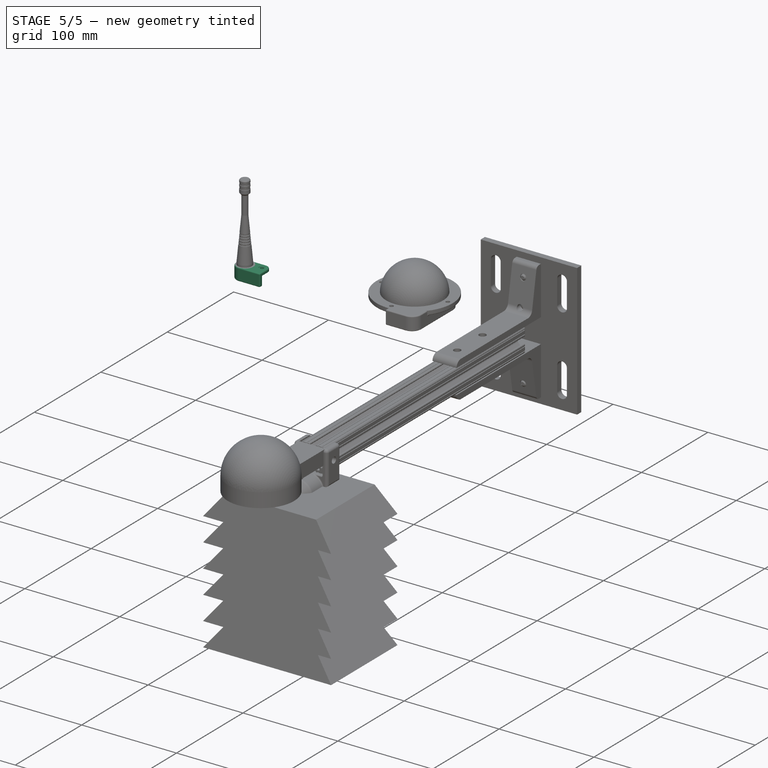
[diagram: stage 5 of 5 — iso view after this stage's code; geometry added in this stage tinted green]
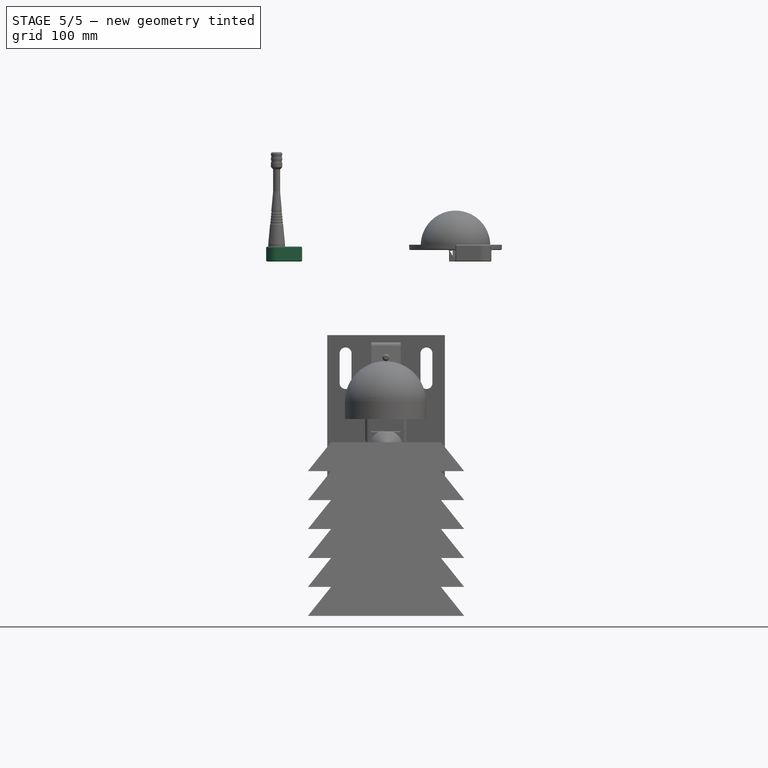
[diagram: stage 5 of 5 — front view after this stage's code; geometry added in this stage tinted green]
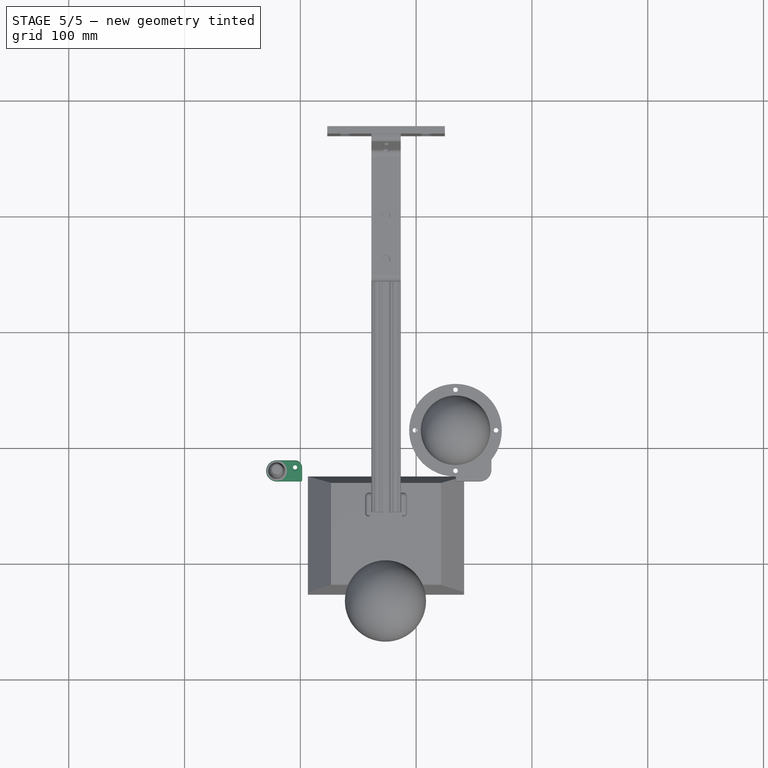
[diagram: stage 5 of 5 — top view after this stage's code; geometry added in this stage tinted green]
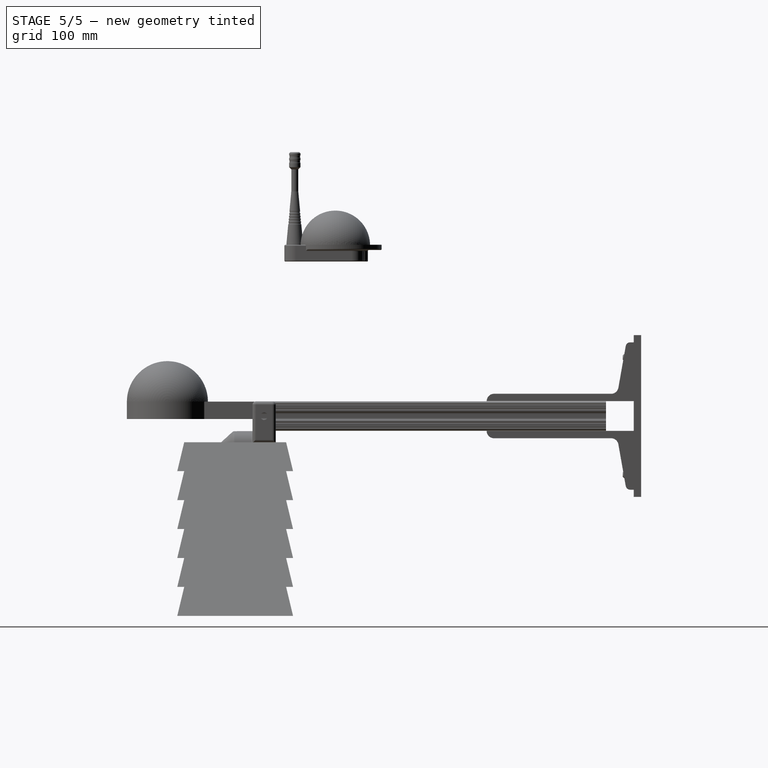
[diagram: stage 5 of 5 — right view after this stage's code; geometry added in this stage tinted green]
FEATURE [Part::Cylinder] Cylinder015  label="antennaIn002"
  Angle = 360
  AttacherType = Attacher::AttachEngine3D
  FirstAngle = 0
  Height = 10
  Placement = pos=(-23,0,65) rot=(0,0,1;0rad)
  Radius = 3.25
  SecondAngle = 0
FEATURE [Part::Cylinder] Cylinder016  label="antennaIn003"
  Angle = 360
  AttacherType = Attacher::AttachEngine3D
  FirstAngle = 0
  Height = 10
  Placement = pos=(-23,0,69) rot=(0,0,1;0rad)
  Radius = 5.75
  SecondAngle = 0
FEATURE [Part::MultiFuse] Fusion004
  Placement = pos=(2.5,-25,-6) rot=(0,0,1;0rad)
  Shapes = -> [Cylinder015,Cylinder016]
FEATURE [Sketcher::SketchObject] Sketch
  FullyConstrained = true
  MapMode = 5
  Support = -> [XY_Plane]
  sketch-geometry (24):
    g0: GeomPoint X=-15.8769 Y=6.2818 Z=0
    g1: GeomPoint X=-15.8769 Y=-11.8438 Z=0
    g2: GeomPoint X=-15.5941 Y=-16.3746 Z=0
    g3: GeomPoint X=-15.0711 Y=-20.8575 Z=0
    g4: GeomPoint X=-14.3647 Y=-25.3051 Z=0
    g5: GeomPoint X=-13.8626 Y=-26.7835 Z=0
    g6: GeomPoint X=-13.0815 Y=-28.0945 Z=0
    g7: GeomPoint X=-12.161 Y=-29.1266 Z=0
    g8: GeomPoint X=-10.8221 Y=-30.0192 Z=0
    g9: GeomPoint X=-9.31585 Y=-30.5771 Z=0
    g10: GeomPoint X=-7.72589 Y=-30.6886 Z=0
    g11: GeomPoint X=7.47631 Y=-30.6886 Z=0
    g12: LineSegment StartX=-15.5941 StartY=-16.3746 StartZ=0 EndX=-15.0711 EndY=-20.8575 EndZ=0
    g13: LineSegment StartX=-15.0711 StartY=-20.8575 StartZ=0 EndX=-14.3647 EndY=-25.3051 EndZ=0
    g14: LineSegment StartX=-14.3647 StartY=-25.3051 StartZ=0 EndX=-13.8626 EndY=-26.7835 EndZ=0
    g15: LineSegment StartX=-13.8626 StartY=-26.7835 StartZ=0 EndX=-13.0815 EndY=-28.0945 EndZ=0
    g16: LineSegment StartX=-13.0815 StartY=-28.0945 StartZ=0 EndX=-12.161 EndY=-29.1266 EndZ=0
    g17: LineSegment StartX=-12.161 StartY=-29.1266 StartZ=0 EndX=-10.8221 EndY=-30.0192 EndZ=0
    g18: LineSegment StartX=-10.8221 StartY=-30.0192 StartZ=0 EndX=-9.31585 EndY=-30.5771 EndZ=0
    g19: LineSegment StartX=-9.31585 StartY=-30.5771 StartZ=0 EndX=-7.72589 EndY=-30.6886 EndZ=0
    g20: LineSegment StartX=7.47631 StartY=-30.6886 StartZ=0 EndX=-7.72589 EndY=-30.6886 EndZ=0
    g21: LineSegment StartX=-15.8769 StartY=-11.8438 StartZ=0 EndX=-15.5941 EndY=-16.3746 EndZ=0
    g22: LineSegment StartX=-15.8769 StartY=-11.8438 StartZ=0 EndX=-15.8769 EndY=6.2818 EndZ=0
    g23: LineSegment StartX=-15.8769 StartY=6.2818 StartZ=0 EndX=7.47631 EndY=-30.6886 EndZ=0
  constraints (54):
    c: Coincident(g12,g2)
    c: Coincident(g12,g3)
    c: Coincident(g13,g12)
    c: Coincident(g13,g4)
    c: Coincident(g14,g13)
    c: Coincident(g14,g5)
    c: Coincident(g15,g14)
    c: Coincident(g15,g6)
    c: Coincident(g16,g15)
    c: Coincident(g16,g7)
    c: Coincident(g17,g16)
    c: Coincident(g17,g8)
    c: Coincident(g18,g9)
    c: Coincident(g19,g10)
    c: Coincident(g20,g11)
    c: Coincident(g20,g19)
    c: Coincident(g21,g12)
    c: Coincident(g22,g21)
    c: Coincident(g22,g0)
    c: Coincident(g23,g20)
    c: DistanceX(g0,g11) = 23.3532
    c: DistanceY(g0,g11) = -36.9704
    c: DistanceX(g1,g11) = 23.3532
    c: DistanceY(g1,g11) = -18.8449
    c: DistanceX(g2,g11) = 23.0704
    c: DistanceY(g2,g11) = -14.3141
    c: DistanceX(g3,g11) = 22.5474
    c: DistanceY(g3,g11) = -9.83113
    c: DistanceX(g4,g11) = 21.841
    c: DistanceY(g4,g11) = -5.38353
    c: DistanceX(g5,g11) = 21.3389
    c: DistanceY(g5,g11) = -3.90515
    c: DistanceX(g6,g11) = 20.5578
    c: DistanceY(g6,g11) = -2.59414
    c: DistanceX(g7,g11) = 19.6373
    c: DistanceY(g7,g11) = -1.56206
    c: DistanceX(g8,g11) = 18.2984
    c: DistanceY(g8,g11) = -0.669455
    c: DistanceX(g9,g11) = 16.7922
    c: DistanceY(g9,g11) = -0.111576
    c: DistanceX(g10,g11) = 15.2022
    c: DistanceY(g10,g11) = 0
    c: DistanceX(g-1) = 0
    c: DistanceY(g-1) = 0
    c: DistanceX(g22) = -15.8769
    c: DistanceY(g22) = 6.2818
    c: DistanceX(g18,g22) = -5.05474
    c: DistanceY(g18,g22) = 36.301
    c: DistanceX(g19,g22) = -6.56102
    c: DistanceY(g19,g22) = 36.8589
    c: DistanceX(g21,g22) = 0
    c: DistanceY(g21,g22) = 18.1256
    c: DistanceX(g23,g22) = 0
    c: DistanceY(g23,g22) = 0
FEATURE [PartDesign::Pad] Pad
  Direction = (0,0,1)
  Length = 30
  Length2 = 10
  Profile = -> Sketch
  ReferenceAxis = -> Sketch [N_Axis]
  Type = 0
FEATURE [Part::Box] Box  label="Cube"
  AttacherType = Attacher::AttachEngine3D
  Height = 13
  Length = 22
  Placement = pos=(-20.5,-34,56) rot=(0,0,1;0rad)
  Width = 18
FEATURE [Part::Cylinder] Cylinder
  Angle = 360
  AttacherType = Attacher::AttachEngine3D
  FirstAngle = 0
  Height = 13
  Placement = pos=(-20.5,-25,56) rot=(0,0,1;0rad)
  Radius = 9
  SecondAngle = 0
FEATURE [Part::MultiFuse] Fusion
  Placement = pos=(0,0,-1) rot=(0,0,1;0rad)
  Shapes = -> [Cylinder,Box]
FEATURE [PartDesign::AdditiveBox] Box002
  AttacherType = Attacher::AttachEngine3D
  BaseFeature = -> Pad
  Height = 10
  Length = 10
  Width = 10
FEATURE [PartDesign::Body] Body
  Group = -> [Sketch,Pad,Box002]
  Origin = -> Origin
  Placement = pos=(0,0,35) rot=(0,0,1;0rad)
  Tip = -> Box002
FEATURE [Part::Fillet] Fillet
  Base = -> Fusion
  Edges = 1 edges r=6: [Edge8]
FEATURE [Part::Fillet] Fillet001
  Base = -> Fillet
  Edges = 9 edges r=1: [Edge1,Edge4,Edge5,Edge8,Edge13,Edge14,Edge15,Edge17,Edge18]
FEATURE [Part::Cylinder] Cylinder017  label="antennaIn004"
  Angle = 360
  AttacherType = Attacher::AttachEngine3D
  FirstAngle = 0
  Height = 10
  Placement = pos=(-23,0,65) rot=(0,0,1;0rad)
  Radius = 3.25
  SecondAngle = 0
FEATURE [Part::Cylinder] Cylinder018  label="antennaIn005"
  Angle = 360
  AttacherType = Attacher::AttachEngine3D
  FirstAngle = 0
  Height = 10
  Placement = pos=(-23,0,69) rot=(0,0,1;0rad)
  Radius = 5.75
  SecondAngle = 0
FEATURE [Part::MultiFuse] Fusion005
  Placement = pos=(2.5,-25,-19.5) rot=(0,0,1;0rad)
  Shapes = -> [Cylinder017,Cylinder018]
FEATURE [Part::MultiFuse] Fusion006  label="antennaCuts"
  Shapes = -> [Fusion004,Fusion005]
FEATURE [Part::Cut] Cut
  Base = -> Fillet001
  Tool = -> Fusion006
FEATURE [Part::Fillet] Fillet002
  Base = -> Cut
  Edges = 2 edges r=1: [Edge68,Edge69]
FEATURE [Part::Fillet] Fillet003
  Base = -> Fillet002
  Edges = 3 edges r=1: [Edge75,Edge76,Edge79]
FEATURE [Part::Cylinder] Cylinder019  label="m3_5Add"
  Angle = 360
  AttacherType = Attacher::AttachEngine3D
  FirstAngle = 0
  Height = 3
  Placement = pos=(-4.5,-22,62.5) rot=(0,0,1;0rad)
  Radius = 3
  SecondAngle = 0
FEATURE [Part::Cylinder] Cylinder020  label="m3Cut"
  Angle = 360
  AttacherType = Attacher::AttachEngine3D
  FirstAngle = 0
  Height = 7
  Placement = pos=(-4.5,-22,62.5) rot=(0,0,1;0rad)
  Radius = 1.8
  SecondAngle = 0
FEATURE [Part::Cylinder] Cylinder021  label="m3Cut001"
  Angle = 360
  AttacherType = Attacher::AttachEngine3D
  FirstAngle = 0
  Height = 7
  Placement = pos=(-4.5,-22,67.5) rot=(0,0,1;0rad)
  Radius = 3
  SecondAngle = 0
FEATURE [Part::Box] Box003  label="Cube001"
  AttacherType = Attacher::AttachEngine3D
  Height = 10
  Length = 17
  Placement = pos=(-10,-24,55) rot=(0,0,1;0rad)
  Width = 10
FEATURE [Part::MultiFuse] Fusion007  label="firstCuts"
  Shapes = -> [Box003,Body]
FEATURE [Part::Cut] Cut001
  Base = -> Fillet003
  Tool = -> Fusion007
FEATURE [Part::MultiFuse] Fusion008
  Shapes = -> [Cylinder019,Cut001]
FEATURE [Part::MultiFuse] Fusion009
  Shapes = -> [Cylinder021,Cylinder020]
FEATURE [Part::Cut] Cut002
  Base = -> Fusion008
  Tool = -> Fusion009
FEATURE [Part::Fillet] Fillet004  label="antennaHolder"
  Base = -> Cut002
  Edges = 1 edges r=0.4: [Edge105]
FEATURE [Part::Fillet] Fillet014
  Base = -> Cut008
  Edges = 2 edges r=1: [Edge74,Edge75]
FEATURE [Part::Fillet] Fillet015
  Base = -> Fillet014
  Edges = 2 edges r=1: [Edge47,Edge199]
FEATURE [Part::Fillet] Fillet016
  Base = -> Fillet015
  Edges = 4 edges r=1: [Edge63,Edge94,Edge102,Edge105]
FEATURE [Part::Fillet] Fillet017  label="lightModule"
  Base = -> Fillet016
  Edges = 4 edges r=0.5: [Edge16,Edge22,Edge74,Edge75]
FEATURE [Part::Cut] Cut009  label="lightModule001"
  Base = -> Fillet017
  Tool = -> Cylinder050
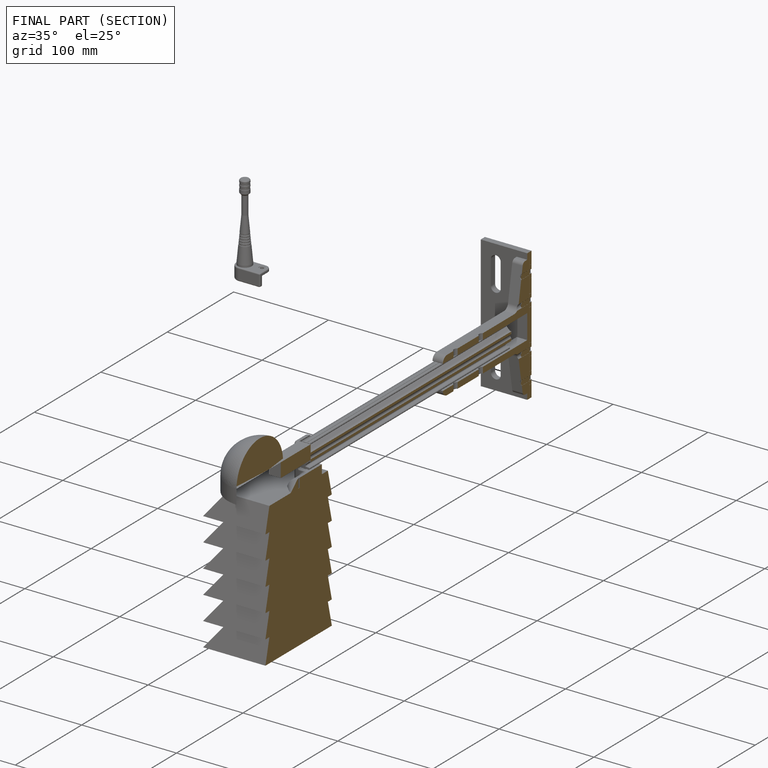
[diagram: finished part — half-section view (interior)]
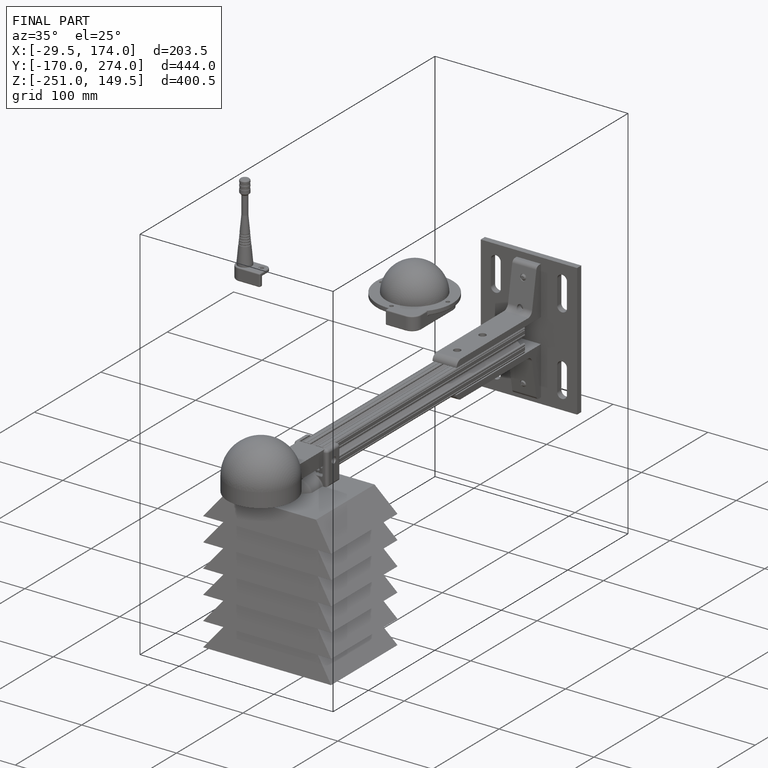
[diagram: finished part — iso view with bounding-box wireframe]
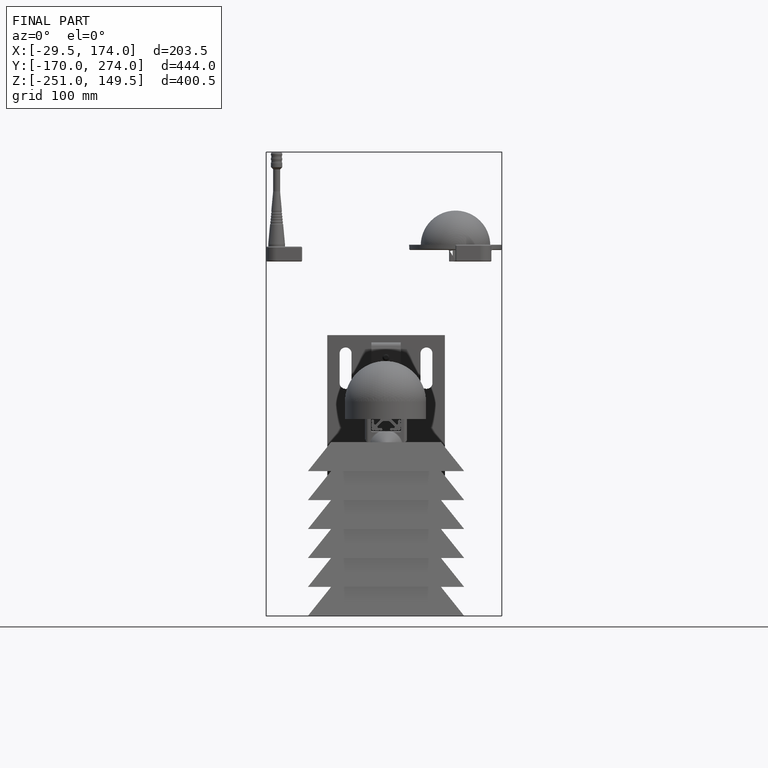
[diagram: finished part — front view with bounding-box wireframe]
